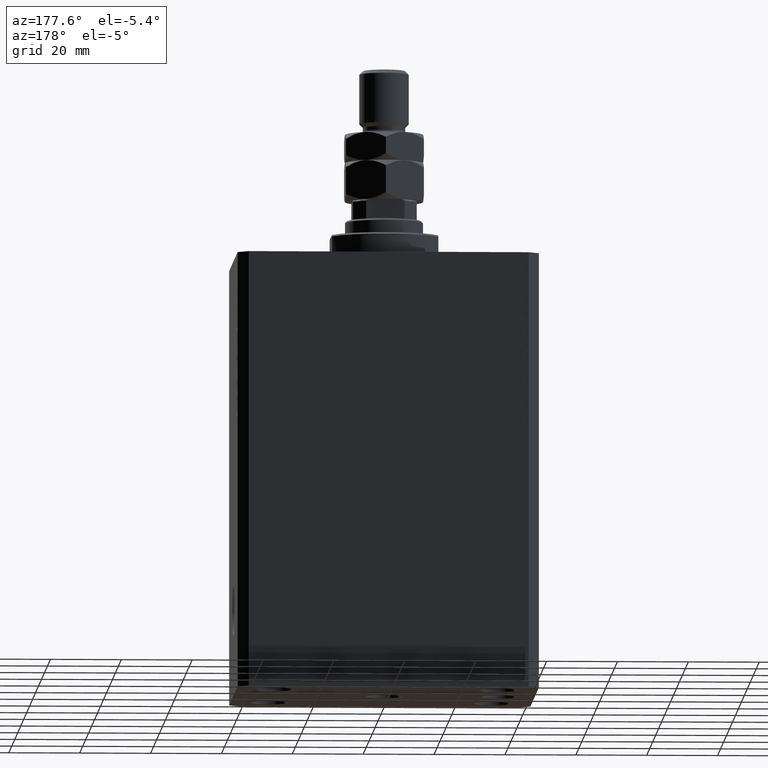
[diagram: clean part render]
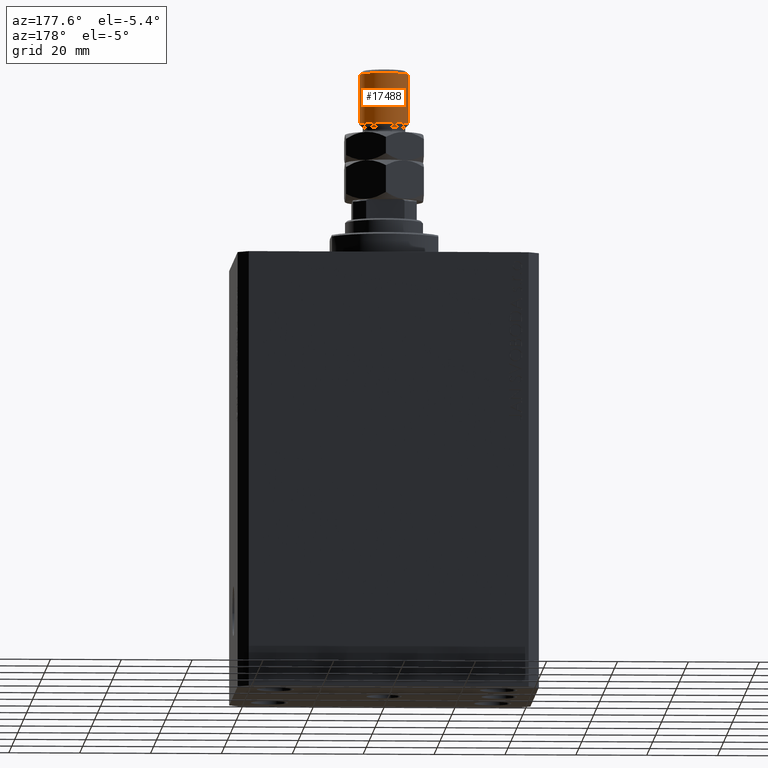
[diagram: same view with one face highlighted and labeled with its STEP entity id]
A machine part, auxiliary view. The second image highlights one B-rep face of the part: STEP entity #17488.
In plain terms, the highlighted cylindrical surface (edge-blend (fillet) strip) has radius 7 mm, axis along (-0, -0, -1).
Its self-contained STEP definition (entity closure, byte-faithful):
#2344 = AXIS2_PLACEMENT_3D ( 'NONE', #9319, #34530, #45038 ) ;
#3807 = EDGE_CURVE ( 'NONE', #26104, #31395, #26252, .T. ) ;
#4353 = VERTEX_POINT ( 'NONE', #25594 ) ;
#4923 = ORIENTED_EDGE ( 'NONE', *, *, #7932, .F. ) ;
#5449 = LINE ( 'NONE', #12687, #7700 ) ;
#5895 = DIRECTION ( 'NONE',  ( 1.000000000000000000, 0.000000000000000000, 0.000000000000000000 ) ) ;
#7501 = CARTESIAN_POINT ( 'NONE',  ( -7.000000000000000000, 0.000000000000000000, 22.00000000000000355 ) ) ;
#7700 = VECTOR ( 'NONE', #9873, 1000.000000000000000 ) ;
#7814 = CARTESIAN_POINT ( 'NONE',  ( 7.000000000000000000, 8.572527594031473190E-16, 37.00000000000000000 ) ) ;
#7932 = EDGE_CURVE ( 'NONE', #4353, #31395, #5449, .T. ) ;
#8861 = ORIENTED_EDGE ( 'NONE', *, *, #3807, .T. ) ;
#9319 = CARTESIAN_POINT ( 'NONE',  ( 0.000000000000000000, 0.000000000000000000, 37.00000000000000000 ) ) ;
#9873 = DIRECTION ( 'NONE',  ( -0.000000000000000000, -0.000000000000000000, -1.000000000000000000 ) ) ;
#11685 = AXIS2_PLACEMENT_3D ( 'NONE', #27372, #44879, #5895 ) ;
#11695 = DIRECTION ( 'NONE',  ( -0.000000000000000000, -0.000000000000000000, 1.000000000000000000 ) ) ;
#12687 = CARTESIAN_POINT ( 'NONE',  ( -7.000000000000000000, 0.000000000000000000, 37.00000000000000000 ) ) ;
#13739 = VERTEX_POINT ( 'NONE', #38592 ) ;
#17488 = ADVANCED_FACE ( 'NONE', ( #19366 ), #20068, .T. ) ;
#19366 = FACE_OUTER_BOUND ( 'NONE', #35574, .T. ) ;
#20068 = CYLINDRICAL_SURFACE ( 'NONE', #2344, 7.000000000000000000 ) ;
#22067 = DIRECTION ( 'NONE',  ( -0.000000000000000000, -0.000000000000000000, -1.000000000000000000 ) ) ;
#23929 = CARTESIAN_POINT ( 'NONE',  ( 7.000000000000000000, 8.572527594031473190E-16, 22.00000000000000355 ) ) ;
#24406 = CIRCLE ( 'NONE', #11685, 7.000000000000000000 ) ;
#25594 = CARTESIAN_POINT ( 'NONE',  ( -7.000000000000000000, 0.000000000000000000, 35.99999999999999289 ) ) ;
#26104 = VERTEX_POINT ( 'NONE', #23929 ) ;
#26252 = CIRCLE ( 'NONE', #40406, 7.000000000000000000 ) ;
#27372 = CARTESIAN_POINT ( 'NONE',  ( 0.000000000000000000, 0.000000000000000000, 35.99999999999999289 ) ) ;
#28072 = ORIENTED_EDGE ( 'NONE', *, *, #36012, .T. ) ;
#31395 = VERTEX_POINT ( 'NONE', #7501 ) ;
#32448 = VECTOR ( 'NONE', #22067, 1000.000000000000000 ) ;
#34530 = DIRECTION ( 'NONE',  ( -0.000000000000000000, -0.000000000000000000, -1.000000000000000000 ) ) ;
#35574 = EDGE_LOOP ( 'NONE', ( #44648, #28072, #8861, #4923 ) ) ;
#36012 = EDGE_CURVE ( 'NONE', #13739, #26104, #39803, .T. ) ;
#38592 = CARTESIAN_POINT ( 'NONE',  ( 7.000000000000000000, 8.572527594031473190E-16, 35.99999999999999289 ) ) ;
#39487 = DIRECTION ( 'NONE',  ( 1.000000000000000000, 0.000000000000000000, 0.000000000000000000 ) ) ;
#39803 = LINE ( 'NONE', #7814, #32448 ) ;
#40406 = AXIS2_PLACEMENT_3D ( 'NONE', #44132, #11695, #39487 ) ;
#41066 = EDGE_CURVE ( 'NONE', #4353, #13739, #24406, .T. ) ;
#44132 = CARTESIAN_POINT ( 'NONE',  ( 0.000000000000000000, 0.000000000000000000, 22.00000000000000355 ) ) ;
#44648 = ORIENTED_EDGE ( 'NONE', *, *, #41066, .T. ) ;
#44879 = DIRECTION ( 'NONE',  ( 0.000000000000000000, 0.000000000000000000, -1.000000000000000000 ) ) ;
#45038 = DIRECTION ( 'NONE',  ( -1.000000000000000000, 0.000000000000000000, 0.000000000000000000 ) ) ;